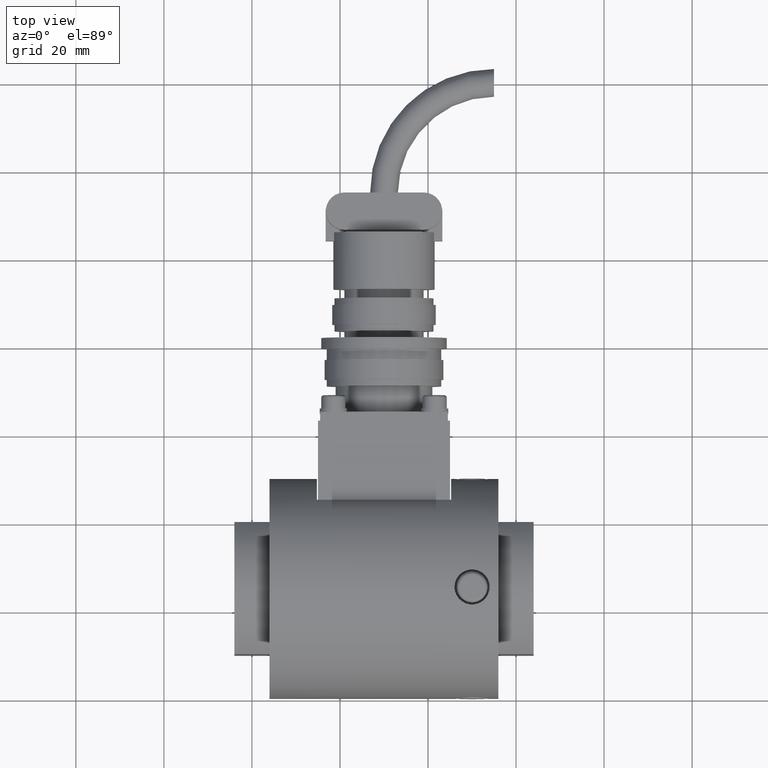
[diagram: clean part render]
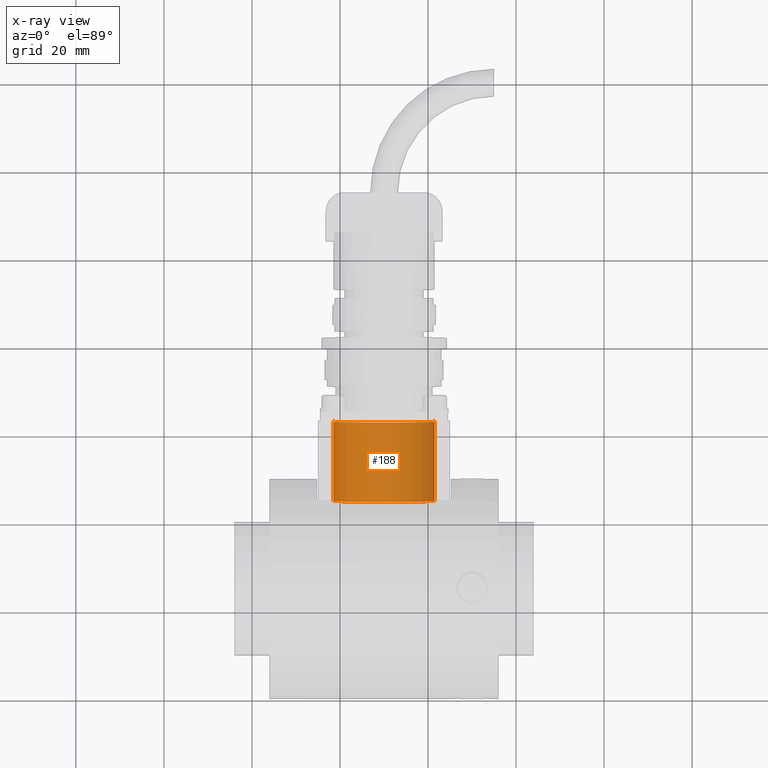
[diagram: x-ray — body ghosted, one internal face saturated and labeled with its STEP entity id]
A machine part, top view, then the same camera in x-ray: the body is ghosted and one INTERNAL B-rep face — a face not visible from any outside direction — is saturated and labeled: STEP entity #188.
In plain terms, the highlighted cylindrical surface (partial cylindrical patch) has radius 11.5 mm, axis along (0, 1, 0).
Its self-contained STEP definition (entity closure, byte-faithful):
#147=CARTESIAN_POINT('',(0.0,0.0,-9.0));
#148=DIRECTION('',(0.0,0.0,1.0));
#149=DIRECTION('',(1.0,0.0,0.0));
#150=AXIS2_PLACEMENT_3D('',#147,#148,#149);
#151=CYLINDRICAL_SURFACE('',#150,11.500000000000000);
#152=CARTESIAN_POINT('',(11.500000000000000,0.0,-9.0));
#153=VERTEX_POINT('',#152);
#154=CARTESIAN_POINT('',(11.500000000000000,0.0,9.0));
#155=VERTEX_POINT('',#154);
#156=CARTESIAN_POINT('',(11.500000000000000,0.0,-9.0));
#157=DIRECTION('',(0.0,0.0,1.0));
#158=VECTOR('',#157,18.0);
#159=LINE('',#156,#158);
#160=EDGE_CURVE('',#153,#155,#159,.T.);
#161=ORIENTED_EDGE('',*,*,#160,.F.);
#162=CARTESIAN_POINT('',(-11.500000000000000,-1.408297E-015,-9.0));
#163=VERTEX_POINT('',#162);
#164=CARTESIAN_POINT('',(0.0,0.0,-9.0));
#165=DIRECTION('',(0.0,0.0,1.0));
#166=DIRECTION('',(1.0,0.0,0.0));
#167=AXIS2_PLACEMENT_3D('',#164,#165,#166);
#168=CIRCLE('',#167,11.500000000000000);
#169=EDGE_CURVE('',#163,#153,#168,.T.);
#170=ORIENTED_EDGE('',*,*,#169,.F.);
#171=CARTESIAN_POINT('',(-11.500000000000000,-8.030412E-014,9.0));
#172=VERTEX_POINT('',#171);
#173=CARTESIAN_POINT('',(-11.500000000000000,-1.408297E-015,-9.0));
#174=DIRECTION('',(0.0,0.0,1.0));
#175=VECTOR('',#174,18.0);
#176=LINE('',#173,#175);
#177=EDGE_CURVE('',#163,#172,#176,.T.);
#178=ORIENTED_EDGE('',*,*,#177,.T.);
#179=CARTESIAN_POINT('',(0.0,0.0,9.0));
#180=DIRECTION('',(0.0,0.0,-1.0));
#181=DIRECTION('',(1.0,0.0,0.0));
#182=AXIS2_PLACEMENT_3D('',#179,#180,#181);
#183=CIRCLE('',#182,11.500000000000000);
#184=EDGE_CURVE('',#155,#172,#183,.T.);
#185=ORIENTED_EDGE('',*,*,#184,.F.);
#186=EDGE_LOOP('',(#161,#170,#178,#185));
#187=FACE_OUTER_BOUND('',#186,.T.);
#188=ADVANCED_FACE('',(#187),#151,.F.);